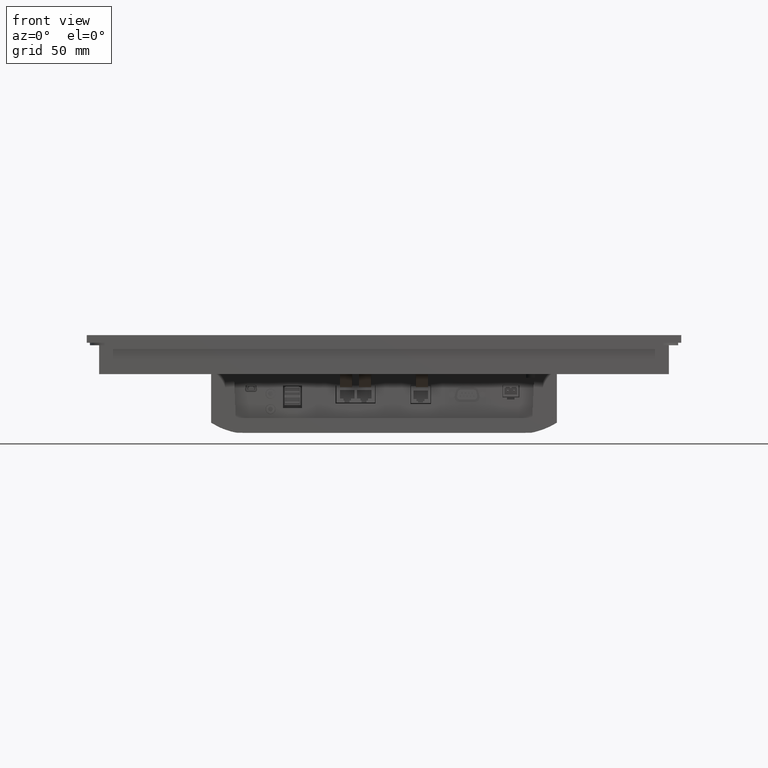
[diagram: clean part render]
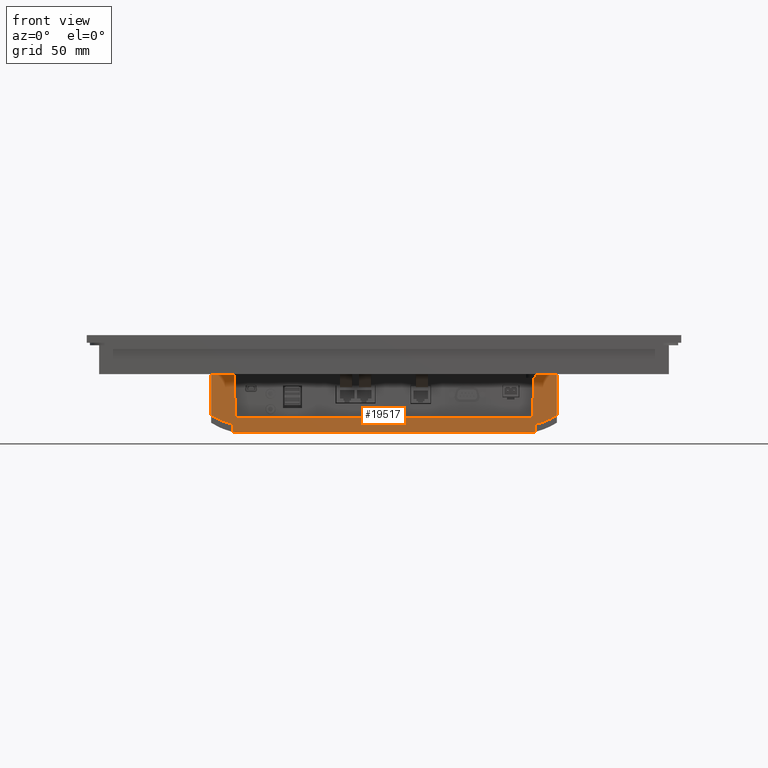
[diagram: same view with one face highlighted and labeled with its STEP entity id]
A machine part, front view. The second image highlights one B-rep face of the part: STEP entity #19517.
In plain terms, the highlighted planar face has unit normal (0, 1, 0).
Its self-contained STEP definition (entity closure, byte-faithful):
#3958=LINE('',#66216,#9294);
#3972=LINE('',#66248,#9308);
#3989=LINE('',#66286,#9325);
#3991=LINE('',#66290,#9327);
#3992=LINE('',#66292,#9328);
#3993=LINE('',#66294,#9329);
#3994=LINE('',#66296,#9330);
#3995=LINE('',#66298,#9331);
#3996=LINE('',#66301,#9332);
#3997=LINE('',#66302,#9333);
#9294=VECTOR('',#54662,1.);
#9308=VECTOR('',#54686,1.);
#9325=VECTOR('',#54713,1.);
#9327=VECTOR('',#54717,1.);
#9328=VECTOR('',#54718,1.);
#9329=VECTOR('',#54719,1.);
#9330=VECTOR('',#54720,1.);
#9331=VECTOR('',#54721,1.);
#9332=VECTOR('',#54724,1.);
#9333=VECTOR('',#54725,1.);
#14716=FACE_OUTER_BOUND('',#23194,.T.);
#17132=PLANE('',#51029);
#19517=ADVANCED_FACE('',(#14716),#17132,.F.);
#23194=EDGE_LOOP('',(#27015,#27016,#27017,#27018,#27019,#27020,#27021,#27022,
#27023,#27024,#27025,#27026,#27027,#27028));
#27015=ORIENTED_EDGE('',*,*,#44170,.T.);
#27016=ORIENTED_EDGE('',*,*,#44171,.F.);
#27017=ORIENTED_EDGE('',*,*,#44172,.F.);
#27018=ORIENTED_EDGE('',*,*,#44173,.F.);
#27019=ORIENTED_EDGE('',*,*,#44174,.T.);
#27020=ORIENTED_EDGE('',*,*,#44168,.F.);
#27021=ORIENTED_EDGE('',*,*,#44175,.T.);
#27022=ORIENTED_EDGE('',*,*,#44176,.T.);
#27023=ORIENTED_EDGE('',*,*,#44097,.F.);
#27024=ORIENTED_EDGE('',*,*,#44131,.F.);
#27025=ORIENTED_EDGE('',*,*,#44159,.F.);
#27026=ORIENTED_EDGE('',*,*,#44177,.T.);
#27027=ORIENTED_EDGE('',*,*,#44178,.T.);
#27028=ORIENTED_EDGE('',*,*,#44148,.T.);
#39551=VERTEX_POINT('',#66148);
#39552=VERTEX_POINT('',#66150);
#39582=VERTEX_POINT('',#66215);
#39595=VERTEX_POINT('',#66247);
#39596=VERTEX_POINT('',#66249);
#39604=VERTEX_POINT('',#66268);
#39611=VERTEX_POINT('',#66285);
#39612=VERTEX_POINT('',#66287);
#39613=VERTEX_POINT('',#66291);
#39614=VERTEX_POINT('',#66293);
#39615=VERTEX_POINT('',#66295);
#39616=VERTEX_POINT('',#66297);
#39617=VERTEX_POINT('',#66300);
#39618=VERTEX_POINT('',#66303);
#44097=EDGE_CURVE('',#39551,#39552,#50383,.T.);
#44131=EDGE_CURVE('',#39582,#39551,#3958,.T.);
#44148=EDGE_CURVE('',#39596,#39595,#3972,.T.);
#44159=EDGE_CURVE('',#39604,#39582,#50398,.T.);
#44168=EDGE_CURVE('',#39611,#39612,#3989,.T.);
#44170=EDGE_CURVE('',#39595,#39613,#3991,.T.);
#44171=EDGE_CURVE('',#39614,#39613,#3992,.T.);
#44172=EDGE_CURVE('',#39615,#39614,#3993,.T.);
#44173=EDGE_CURVE('',#39616,#39615,#3994,.T.);
#44174=EDGE_CURVE('',#39616,#39612,#3995,.T.);
#44175=EDGE_CURVE('',#39611,#39617,#50399,.T.);
#44176=EDGE_CURVE('',#39617,#39552,#3996,.T.);
#44177=EDGE_CURVE('',#39604,#39618,#3997,.T.);
#44178=EDGE_CURVE('',#39618,#39596,#50400,.T.);
#50383=CIRCLE('',#51004,59.9999932181805);
#50398=CIRCLE('',#51024,60.00007089151);
#50399=CIRCLE('',#51027,59.9999941601408);
#50400=CIRCLE('',#51028,60.0000089968037);
#51004=AXIS2_PLACEMENT_3D('',#66149,#54614,#54615);
#51024=AXIS2_PLACEMENT_3D('',#66269,#54701,#54702);
#51027=AXIS2_PLACEMENT_3D('',#66299,#54722,#54723);
#51028=AXIS2_PLACEMENT_3D('',#66304,#54726,#54727);
#51029=AXIS2_PLACEMENT_3D('',#66305,#54728,#54729);
#54614=DIRECTION('',(0.,-1.,0.));
#54615=DIRECTION('',(-1.,0.,1.73472367205319E-016));
#54662=DIRECTION('',(1.,0.,0.));
#54686=DIRECTION('',(0.,0.,1.));
#54701=DIRECTION('',(0.,-1.,0.));
#54702=DIRECTION('',(-1.,0.,1.73472142635978E-016));
#54713=DIRECTION('',(0.,0.,1.));
#54717=DIRECTION('',(1.,0.,0.));
#54718=DIRECTION('',(-0.0436193873653361,0.,0.999048221581858));
#54719=DIRECTION('',(-1.,0.,0.));
#54720=DIRECTION('',(-0.0436193873653361,0.,-0.999048221581858));
#54721=DIRECTION('',(1.,0.,0.));
#54722=DIRECTION('',(0.,1.,0.));
#54723=DIRECTION('',(-1.,0.,-1.73472364481917E-016));
#54724=DIRECTION('',(1.55063352290848E-015,0.,-1.));
#54725=DIRECTION('',(0.,0.,1.));
#54726=DIRECTION('',(0.,1.,0.));
#54727=DIRECTION('',(-1.,0.,-1.73472321586074E-016));
#54728=DIRECTION('',(0.,-1.,0.));
#54729=DIRECTION('',(0.,0.,-1.));
#66148=CARTESIAN_POINT('',(119.499982654763,56.38730192373,-75.6));
#66149=CARTESIAN_POINT('',(108.586892071966,56.38730192373,-16.6008166148601));
#66150=CARTESIAN_POINT('',(122.9744995459,56.38730192373,-74.8502452589052));
#66215=CARTESIAN_POINT('',(-119.500005295459,56.38730192373,-75.6));
#66216=CARTESIAN_POINT('',(-140.4873019237,56.38730192373,-75.6));
#66247=CARTESIAN_POINT('',(-140.4873019237,56.38730192373,-28.));
#66248=CARTESIAN_POINT('',(-140.4873019237,56.38730192373,-75.6));
#66249=CARTESIAN_POINT('',(-140.4873019237,56.38730192373,-61.4177737667739));
#66268=CARTESIAN_POINT('',(-122.72475017102,56.38730192373,-74.9113688106157));
#66269=CARTESIAN_POINT('',(-108.586854133333,56.38730192373,-16.6007488292283));
#66285=CARTESIAN_POINT('',(140.4873019237,56.38730192373,-61.4177735908787));
#66286=CARTESIAN_POINT('',(140.4873019237,56.38730192373,-75.6));
#66287=CARTESIAN_POINT('',(140.4873019237,56.38730192373,-28.));
#66290=CARTESIAN_POINT('',(-140.4873019237,56.38730192373,-28.));
#66291=CARTESIAN_POINT('',(-122.000000000027,56.38730192373,-28.));
#66292=CARTESIAN_POINT('',(-120.445670432484,56.38730192373,-63.6));
#66293=CARTESIAN_POINT('',(-120.445670432484,56.38730192373,-63.6));
#66294=CARTESIAN_POINT('',(120.445670432484,56.38730192373,-63.6));
#66295=CARTESIAN_POINT('',(120.445670432484,56.38730192373,-63.6));
#66296=CARTESIAN_POINT('',(122.000000000027,56.38730192373,-28.));
#66297=CARTESIAN_POINT('',(122.000000000027,56.38730192373,-28.));
#66298=CARTESIAN_POINT('',(-140.4873019237,56.38730192373,-28.));
#66299=CARTESIAN_POINT('',(108.586890491893,56.38730192373,-10.6008172701941));
#66300=CARTESIAN_POINT('',(122.974499545907,56.38730192373,-68.8502464942284));
#66301=CARTESIAN_POINT('',(122.9744995459,56.38730192373,-68.8502464942301));
#66302=CARTESIAN_POINT('',(-122.72475017102,56.38730192373,-76.3));
#66303=CARTESIAN_POINT('',(-122.72475017102,56.38730192373,-68.9113672579818));
#66304=CARTESIAN_POINT('',(-108.586884727864,56.38730192373,-10.6008035466977));
#66305=CARTESIAN_POINT('',(-140.4873019237,56.38730192373,-75.6));